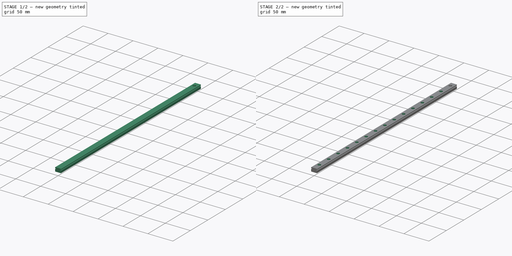
[diagram: build sequence overview — one tinted view per stage of 2, left to right]
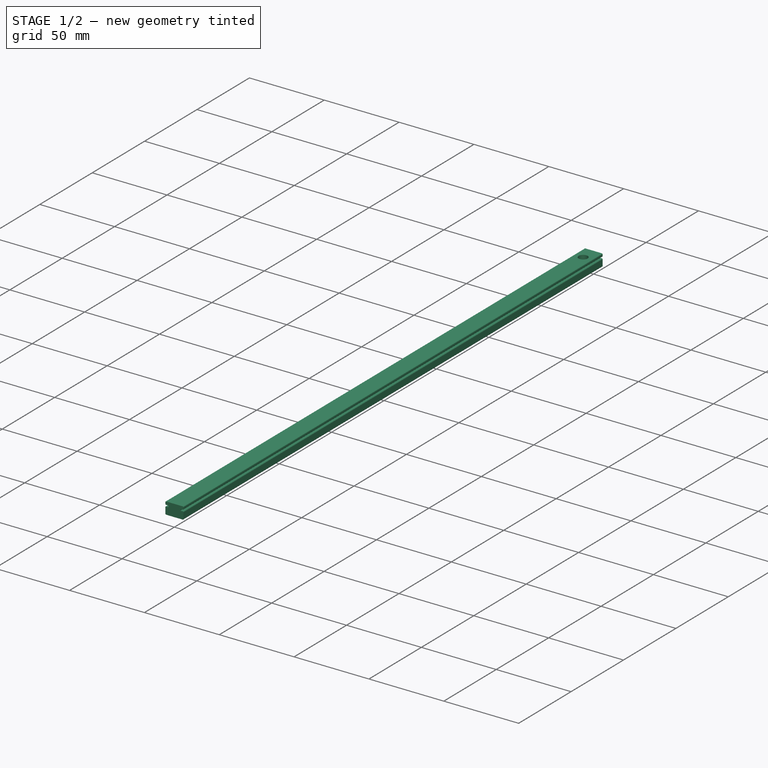
[diagram: stage 1 of 2 — iso view after this stage's code; geometry added in this stage tinted green]
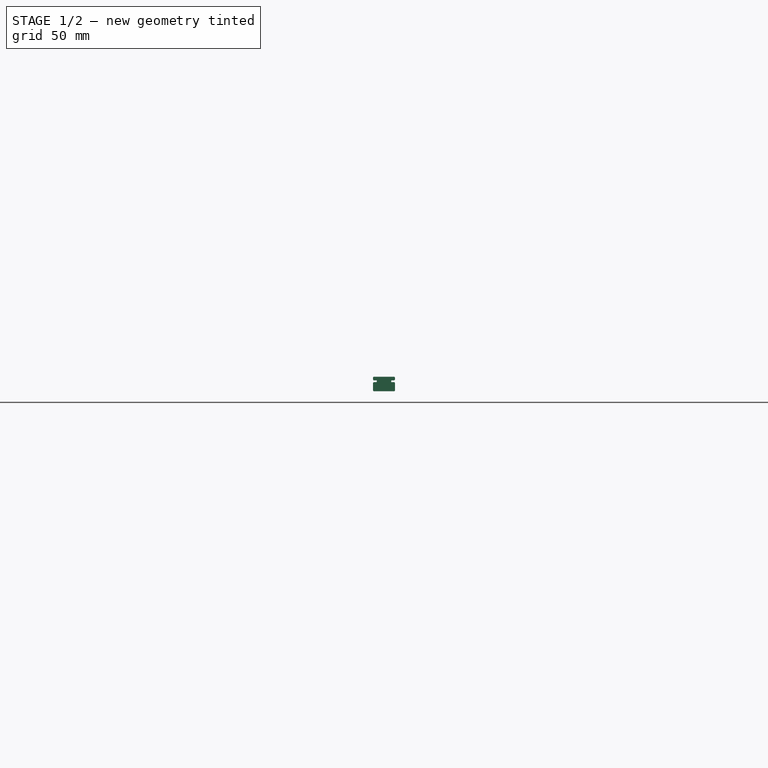
[diagram: stage 1 of 2 — front view after this stage's code; geometry added in this stage tinted green]
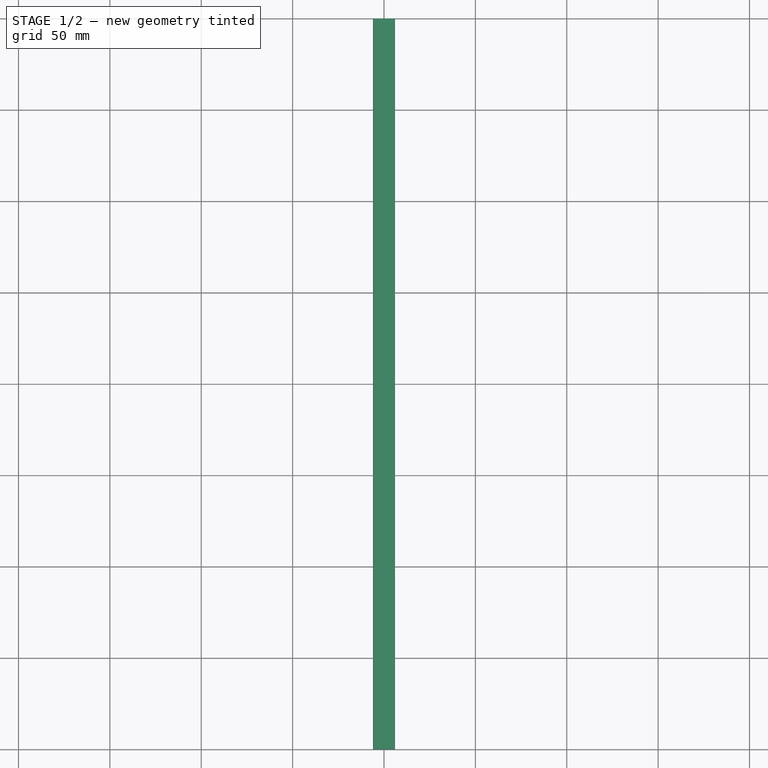
[diagram: stage 1 of 2 — top view after this stage's code; geometry added in this stage tinted green]
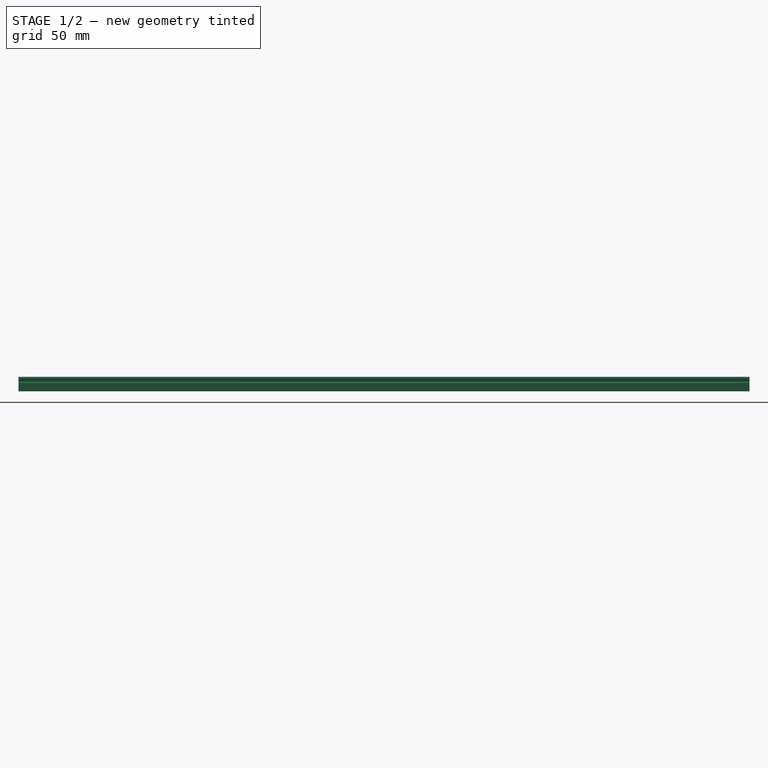
[diagram: stage 1 of 2 — right view after this stage's code; geometry added in this stage tinted green]
FCSTD DOCUMENT  (FreeCAD 0.20R29076 (Git))
Label: MGN12-400
License: All rights reserved
LicenseURL: http://en.wikipedia.org/wiki/All_rights_reserved
objects: Sketcher::SketchObject×3, PartDesign::Pocket×2, PartDesign::Pad×1, PartDesign::LinearPattern×1, PartDesign::Body×1
note: 11 computed .brp shape members not serialized (recipe doc carries the construction recipe); baked Part::Feature solids carry a one-line shape summary decoded from their .brp

FEATURE [Sketcher::SketchObject] Sketch
  FullyConstrained = true
  MapMode = 5
  Placement = pos=(0,0,0) rot=(1,0,0;1.5708rad)
  Support = -> [XZ_Plane]
  sketch-geometry (20):
    g0: LineSegment StartX=-5.5 StartY=0 StartZ=0 EndX=5.5 EndY=0 EndZ=0
    g1: LineSegment StartX=-6 StartY=0.5 StartZ=0 EndX=-6 EndY=4.5 EndZ=0
    g2: LineSegment StartX=6 StartY=0.5 StartZ=0 EndX=6 EndY=4.5 EndZ=0
    g3: LineSegment StartX=-5.5 StartY=5 StartZ=0 EndX=-4 EndY=5 EndZ=0
    g4: LineSegment StartX=5.5 StartY=5 StartZ=0 EndX=4 EndY=5 EndZ=0
    g5: LineSegment StartX=-4 StartY=5 StartZ=0 EndX=-4 EndY=6 EndZ=0
    g6: LineSegment StartX=4 StartY=5 StartZ=0 EndX=4 EndY=6 EndZ=0
    g7: LineSegment StartX=4 StartY=6 StartZ=0 EndX=5.5 EndY=6 EndZ=0
    g8: LineSegment StartX=-4 StartY=6 StartZ=0 EndX=-5.5 EndY=6 EndZ=0
    g9: LineSegment StartX=-6 StartY=6.5 StartZ=0 EndX=-6 EndY=7.5 EndZ=0
    g10: LineSegment StartX=6 StartY=6.5 StartZ=0 EndX=6 EndY=7.5 EndZ=0
    g11: LineSegment StartX=-5.5 StartY=8 StartZ=0 EndX=5.5 EndY=8 EndZ=0
    g12: ArcOfCircle CenterX=-5.5 CenterY=7.5 CenterZ=0 NormalX=0 NormalY=0 NormalZ=1 AngleXU=0 Radius=0.5 StartAngle=1.5708 EndAngle=3.14159
    g13: ArcOfCircle CenterX=5.5 CenterY=7.5 CenterZ=0 NormalX=0 NormalY=0 NormalZ=1 AngleXU=0 Radius=0.5 StartAngle=-9e-16 EndAngle=1.5708
    g14: ArcOfCircle CenterX=-5.5 CenterY=6.5 CenterZ=0 NormalX=0 NormalY=0 NormalZ=1 AngleXU=0 Radius=0.5 StartAngle=3.14159 EndAngle=4.71239
    g15: ArcOfCircle CenterX=5.5 CenterY=6.5 CenterZ=0 NormalX=0 NormalY=0 NormalZ=1 AngleXU=0 Radius=0.5 StartAngle=4.71239 EndAngle=6.28319
    g16: ArcOfCircle CenterX=-5.5 CenterY=4.5 CenterZ=0 NormalX=0 NormalY=0 NormalZ=1 AngleXU=0 Radius=0.5 StartAngle=1.5708 EndAngle=3.14159
    g17: ArcOfCircle CenterX=-5.5 CenterY=0.5 CenterZ=0 NormalX=0 NormalY=0 NormalZ=1 AngleXU=0 Radius=0.5 StartAngle=3.14159 EndAngle=4.71239
    g18: ArcOfCircle CenterX=5.5 CenterY=0.5 CenterZ=0 NormalX=0 NormalY=0 NormalZ=1 AngleXU=0 Radius=0.5 StartAngle=4.71239 EndAngle=6.28319
    g19: ArcOfCircle CenterX=5.5 CenterY=4.5 CenterZ=0 NormalX=0 NormalY=0 NormalZ=1 AngleXU=0 Radius=0.5 StartAngle=0 EndAngle=1.5708
  constraints (51):
    c: Vertical(g1)
    c: Vertical(g2)
    c: Horizontal(g3)
    c: Horizontal(g4)
    c: Horizontal(g3,g4)
    c: Coincident(g5,g3)
    c: Vertical(g5)
    c: Coincident(g6,g4)
    c: Vertical(g6)
    c: Coincident(g7,g6)
    c: Horizontal(g7)
    c: Coincident(g8,g5)
    c: Horizontal(g8)
    c: Vertical(g9)
    c: Vertical(g10)
    c: Horizontal(g11)
    c: Tangent(g11,g12) = 1.5708
    c: Tangent(g9,g12) = 1.5708
    c: Tangent(g10,g13) = -1.5708
    c: Tangent(g11,g13) = 1.5708
    c: Tangent(g8,g14) = 1.5708
    c: Tangent(g9,g14) = 1.5708
    c: Tangent(g7,g15) = -1.5708
    c: Tangent(g10,g15) = -1.5708
    c: Tangent(g1,g16) = 1.5708
    c: Tangent(g3,g16) = 1.5708
    c: Tangent(g0,g17) = -1.5708
    c: Tangent(g1,g17) = 1.5708
    c: Tangent(g0,g18) = -1.5708
    c: Tangent(g2,g18) = -1.5708
    c: DistanceX(g1,g2) = 12
    c: Tangent(g4,g19) = -1.5708
    c: Tangent(g2,g19) = -1.5708
    c: Equal(g17,g18)
    c: Equal(g18,g16)
    c: Equal(g16,g19)
    c: Equal(g19,g15)
    c: Equal(g15,g14)
    c: Equal(g14,g12)
    c: Equal(g12,g13)
    c: Radius(g18) = 0.5
    c: Horizontal(g0)
    c: Horizontal(g5,g6)
    c: DistanceY(g0,g3) = 5
    c: DistanceY(g3,g8) = 1
    c: DistanceY(g0,g11) = 8
    c: DistanceX(g1,g3) = 2
    c: Equal(g3,g4)
    c: Equal(g8,g7)
    c: Symmetric(g0,g0,g-1)
    c: Vertical(g1,g9)
FEATURE [PartDesign::Pad] Pad
  Direction = (1,1,1)
  Length = 400
  Length2 = 100
  Placement = pos=(0,0,0) rot=(1,0,0;1.5708rad)
  Profile = -> Sketch
  Type = 0
FEATURE [Sketcher::SketchObject] Sketch001
  FullyConstrained = true
  MapMode = 5
  Placement = pos=(0,0,8) rot=(0,0,1;3.14159rad)
  Support = -> [Pad]
  sketch-geometry (1):
    g0: Circle CenterX=0 CenterY=10 CenterZ=0 NormalX=0 NormalY=0 NormalZ=1 AngleXU=0 Radius=3
  constraints (3):
    c: PointOnObject(g0,g-2)
    c: DistanceY(g-1,g0) = 10
    c: Diameter(g0) = 6
FEATURE [PartDesign::Pocket] Pocket
  BaseFeature = -> Pad
  Direction = (0,0,-1)
  Length = 4.5
  Length2 = 100
  Placement = pos=(0,0,0) rot=(1,0,0;1.5708rad)
  Profile = -> Sketch001
  Type = 0
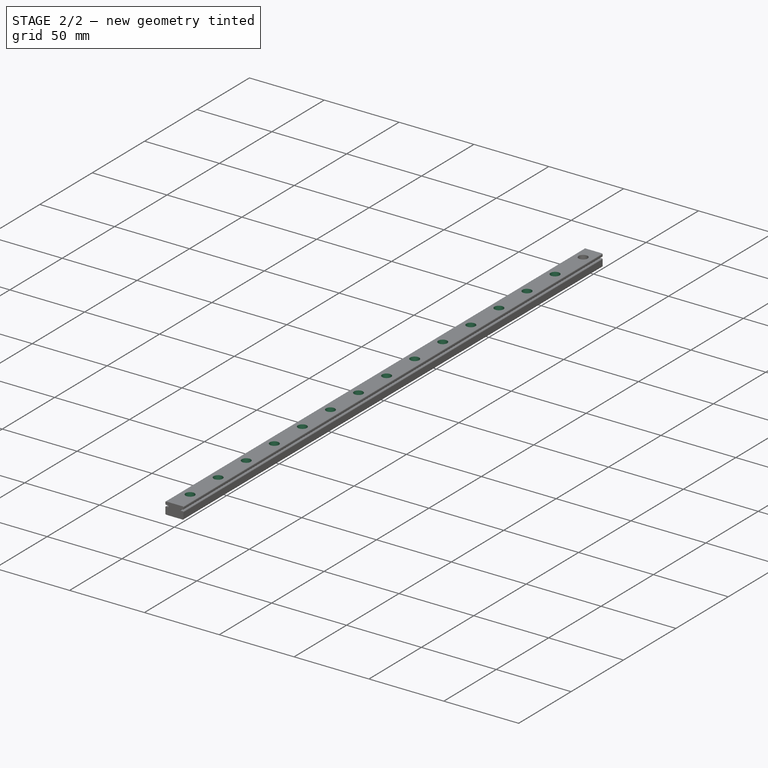
[diagram: stage 2 of 2 — iso view after this stage's code; geometry added in this stage tinted green]
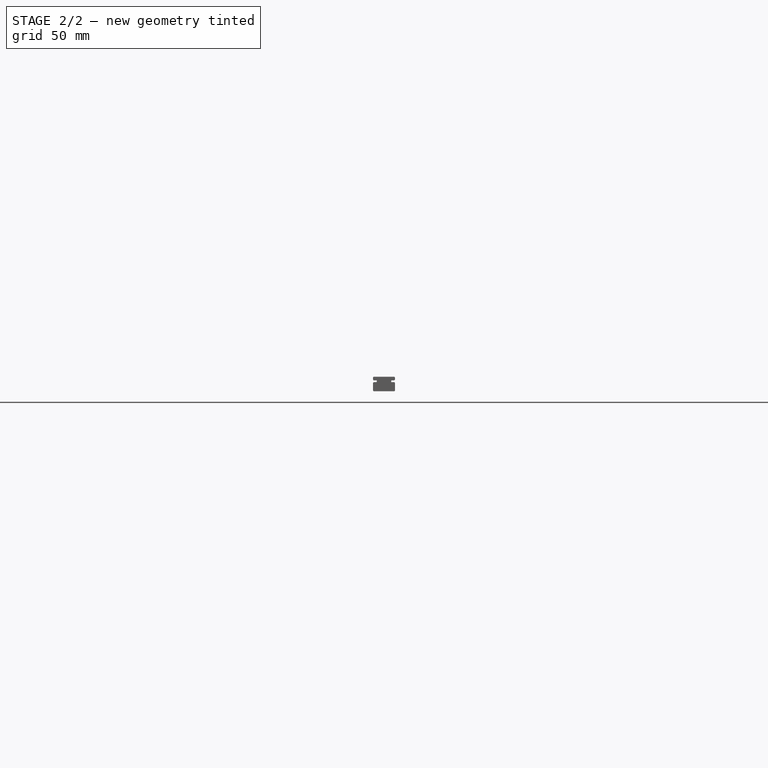
[diagram: stage 2 of 2 — front view after this stage's code; geometry added in this stage tinted green]
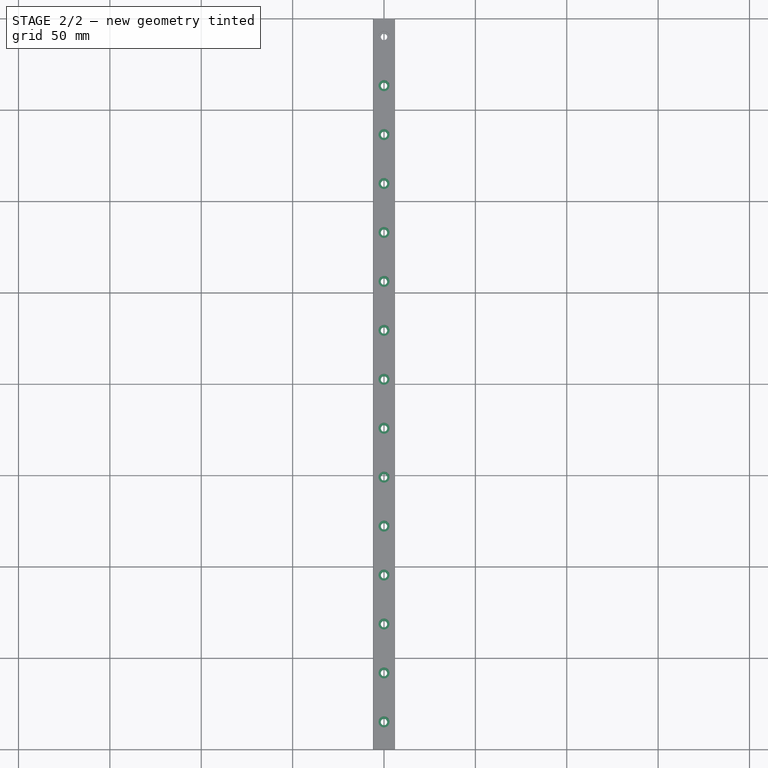
[diagram: stage 2 of 2 — top view after this stage's code; geometry added in this stage tinted green]
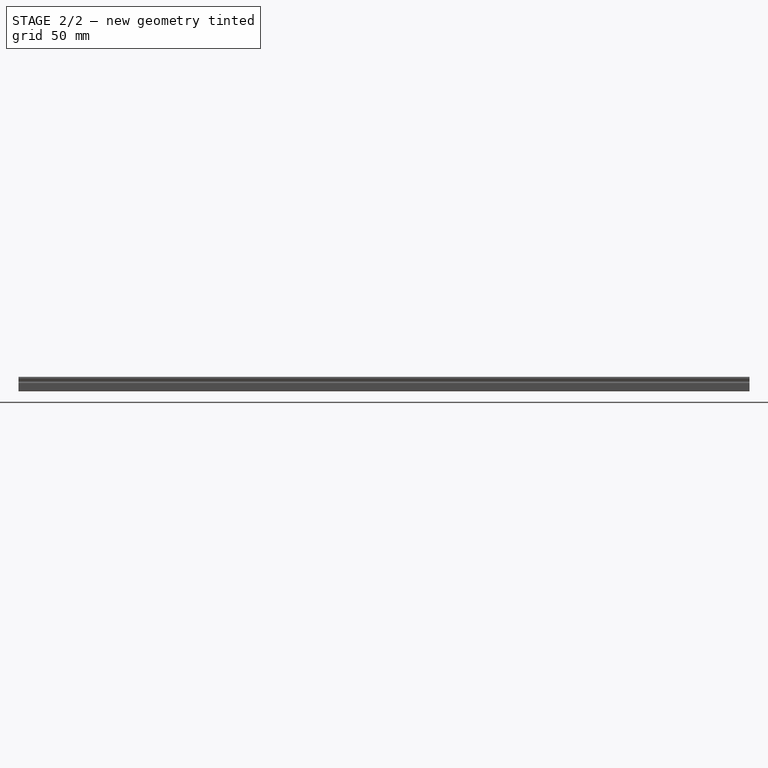
[diagram: stage 2 of 2 — right view after this stage's code; geometry added in this stage tinted green]
FEATURE [Sketcher::SketchObject] Sketch002
  ExternalGeometry = -> [Pocket]
  FullyConstrained = true
  MapMode = 5
  Placement = pos=(0,9e-16,8) rot=(0,0,1;3.14159rad)
  Support = -> [Pocket]
  sketch-geometry (1):
    g0: Circle CenterX=0 CenterY=10 CenterZ=0 NormalX=0 NormalY=0 NormalZ=1 AngleXU=0 Radius=1.75
  constraints (2):
    c: Coincident(g0,g-3)
    c: Diameter(g0) = 3.5
FEATURE [PartDesign::Pocket] Pocket001
  BaseFeature = -> Pocket
  Direction = (0,-1e-16,-1)
  Length = 5
  Length2 = 100
  Placement = pos=(0,0,0) rot=(1,0,0;1.5708rad)
  Profile = -> Sketch002
  Type = 1
FEATURE [PartDesign::LinearPattern] LinearPattern
  BaseFeature = -> Pocket001
  Direction = -> Y_Axis
  Length = 375
  Occurrences = 15
  Originals = -> [Pocket,Pocket001]
  Placement = pos=(0,0,0) rot=(1,0,0;1.5708rad)
  Reversed = true
FEATURE [PartDesign::Body] Body
  Group = -> [Sketch,Pad,Sketch001,Pocket,Sketch002,Pocket001,LinearPattern]
  Origin = -> Origin
  Tip = -> LinearPattern
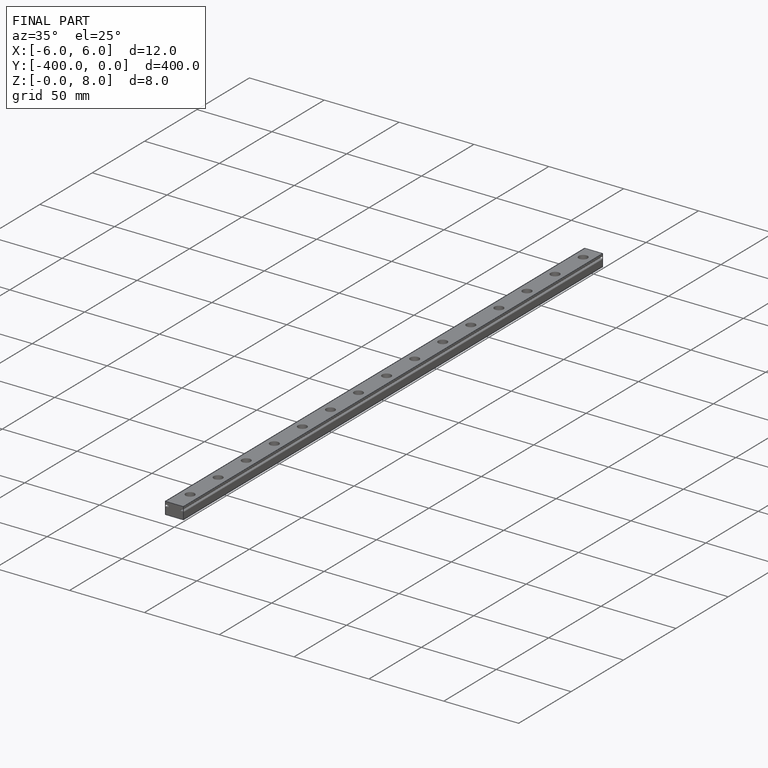
[diagram: finished part — iso view with bounding-box wireframe]
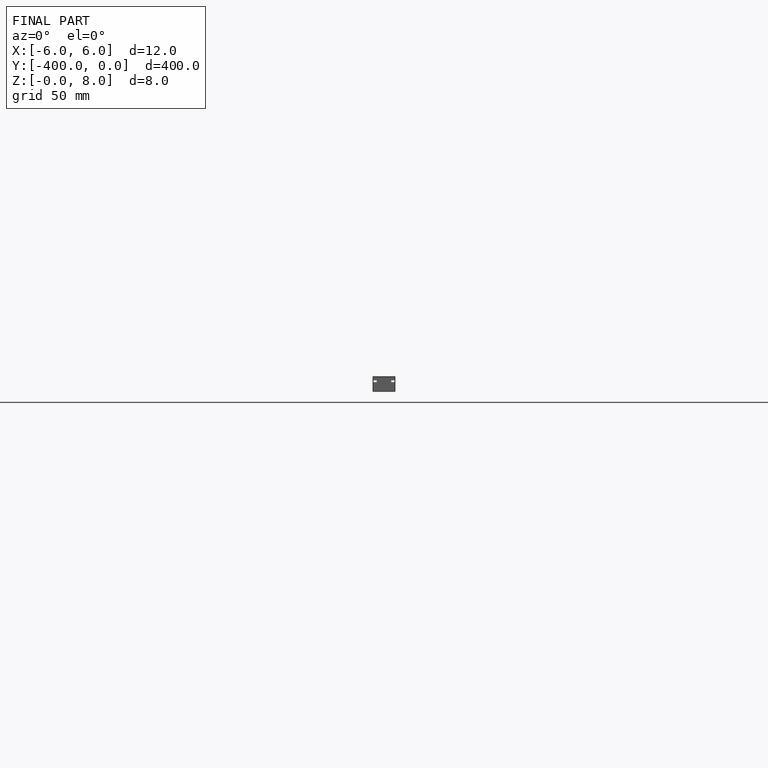
[diagram: finished part — front view with bounding-box wireframe]
